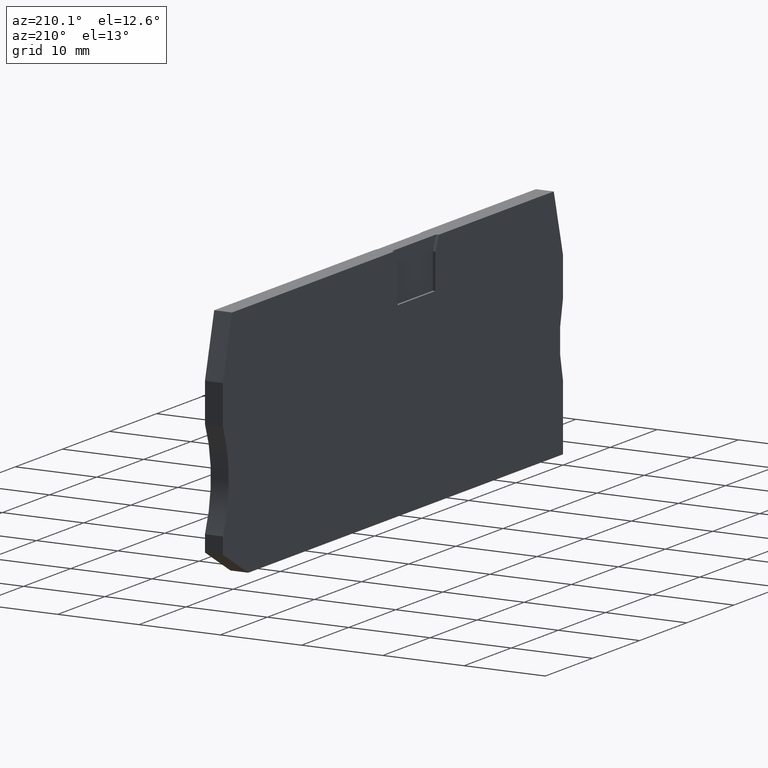
[diagram: clean part render]
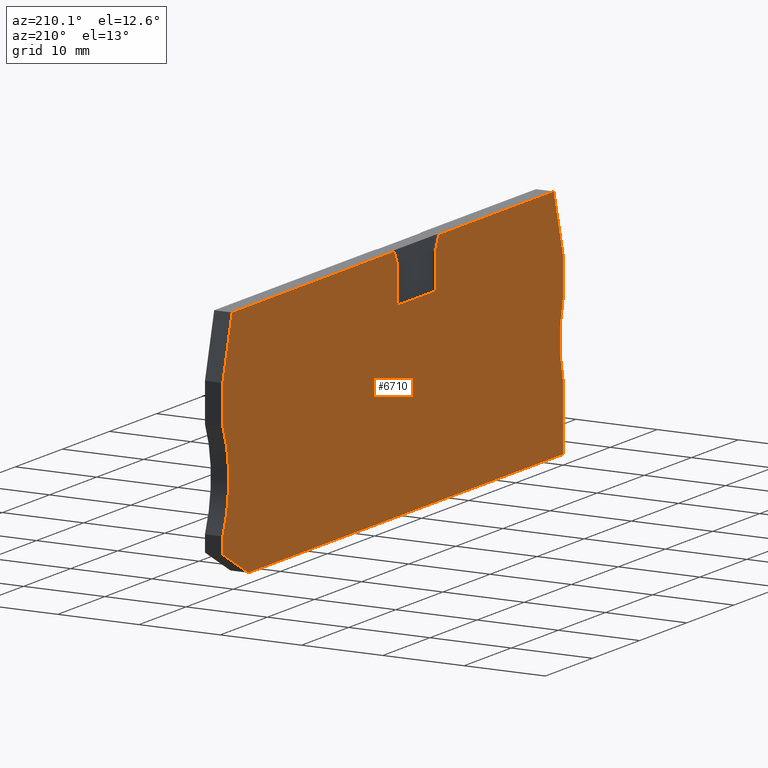
[diagram: same view with one face highlighted and labeled with its STEP entity id]
A machine part, auxiliary view. The second image highlights one B-rep face of the part: STEP entity #6710.
In plain terms, the highlighted planar face has unit normal (-1, -0, 0).
Its self-contained STEP definition (entity closure, byte-faithful):
#60=CARTESIAN_POINT('',(-7.06783277832367,-12.1300507694265,53.17));
#70=DIRECTION('',(-8.65973959207633E-15,1.,0.));
#80=VECTOR('',#70,1.);
#90=LINE('',#60,#80);
#100=CARTESIAN_POINT('',(-7.06783277832365,-15.1500000000019,53.17));
#110=VERTEX_POINT('',#100);
#120=CARTESIAN_POINT('',(-7.06783277832368,-10.8500000000052,53.17));
#130=VERTEX_POINT('',#120);
#140=EDGE_CURVE('',#110,#130,#90,.T.);
#2020=CARTESIAN_POINT('',(0.932167221676107,-12.1300507694265,53.17));
#2030=DIRECTION('',(-1.05471187339379E-15,-1.,0.));
#2040=VECTOR('',#2030,1.);
#2050=LINE('',#2020,#2040);
#2060=CARTESIAN_POINT('',(0.932167221676108,-10.8499999999525,53.17));
#2070=VERTEX_POINT('',#2060);
#2080=CARTESIAN_POINT('',(0.932167221676103,-15.1500000000019,53.17));
#2090=VERTEX_POINT('',#2080);
#2100=EDGE_CURVE('',#2070,#2090,#2050,.T.);
#2490=CARTESIAN_POINT('',(0.391157740167616,-12.1300507694265,53.17));
#2500=DIRECTION('',(-0.389303997098189,-0.921109330016461,0.));
#2510=VECTOR('',#2500,1.);
#2520=LINE('',#2490,#2510);
#2530=CARTESIAN_POINT('',(1.65066694096119,-9.15000000000164,53.17));
#2540=VERTEX_POINT('',#2530);
#2550=EDGE_CURVE('',#2540,#2070,#2520,.T.);
#2910=CARTESIAN_POINT('',(-34.1678327783247,-38.2000000000015,53.17));
#2920=VERTEX_POINT('',#2910);
#2950=CARTESIAN_POINT('',(-34.1678327783247,-12.1300507694265,53.17));
#2960=DIRECTION('',(0.,1.,0.));
#2970=VECTOR('',#2960,1.);
#2980=LINE('',#2950,#2970);
#2990=CARTESIAN_POINT('',(-34.1678327783247,-30.2000000000027,53.17));
#3000=VERTEX_POINT('',#2990);
#3010=EDGE_CURVE('',#2920,#3000,#2980,.T.);
#3260=CARTESIAN_POINT('',(-48.4769207995789,-25.7000000000027,53.17));
#3270=DIRECTION('',(0.,0.,1.));
#3280=DIRECTION('',(1.,0.,0.));
#3290=AXIS2_PLACEMENT_3D('',#3260,#3270,#3280);
#3300=CIRCLE('',#3290,15.);
#3310=CARTESIAN_POINT('',(-34.1678327783247,-21.2000000000028,53.17));
#3320=VERTEX_POINT('',#3310);
#3330=EDGE_CURVE('',#3000,#3320,#3300,.T.);
#3610=CARTESIAN_POINT('',(38.0321672216756,-21.2000000000027,53.17));
#3620=VERTEX_POINT('',#3610);
#3650=CARTESIAN_POINT('',(51.7798943065431,-27.2000000000027,53.17));
#3660=DIRECTION('',(0.,0.,1.));
#3670=DIRECTION('',(1.,0.,0.));
#3680=AXIS2_PLACEMENT_3D('',#3650,#3660,#3670);
#3690=CIRCLE('',#3680,15.);
#3700=CARTESIAN_POINT('',(38.0321672216756,-33.2000000000027,53.17));
#3710=VERTEX_POINT('',#3700);
#3720=EDGE_CURVE('',#3620,#3710,#3690,.T.);
#4760=CARTESIAN_POINT('',(38.0321672216756,-35.2,53.17));
#4770=VERTEX_POINT('',#4760);
#4800=CARTESIAN_POINT('',(11.4461541156283,-49.9500920346874,53.17));
#4810=DIRECTION('',(-0.874435210897321,-0.485142311021165,0.));
#4820=VECTOR('',#4810,1.);
#4830=LINE('',#4800,#4820);
#4840=CARTESIAN_POINT('',(32.6248762616859,-38.2000000000015,53.17));
#4850=VERTEX_POINT('',#4840);
#4860=EDGE_CURVE('',#4770,#4850,#4830,.T.);
#5120=CARTESIAN_POINT('',(11.4461541156283,-38.2000000000015,53.17));
#5130=DIRECTION('',(-1.,0.,0.));
#5140=VECTOR('',#5130,1.);
#5150=LINE('',#5120,#5140);
#5160=EDGE_CURVE('',#4850,#2920,#5150,.T.);
#5760=CARTESIAN_POINT('',(36.0719729923292,-9.15000000000164,53.17));
#5770=VERTEX_POINT('',#5760);
#5800=CARTESIAN_POINT('',(36.8704751894023,-12.1300507694265,53.17));
#5810=DIRECTION('',(0.258819045103111,-0.96592582628891,0.));
#5820=VECTOR('',#5810,1.);
#5830=LINE('',#5800,#5820);
#5840=CARTESIAN_POINT('',(38.0321672216756,-16.4655444566078,53.17));
#5850=VERTEX_POINT('',#5840);
#5860=EDGE_CURVE('',#5770,#5850,#5830,.T.);
#6050=CARTESIAN_POINT('',(-4.68088356410453,-22.3521492060807,53.17));
#6060=DIRECTION('',(0.,0.,-1.));
#6070=DIRECTION('',(-1.,0.,0.));
#6080=AXIS2_PLACEMENT_3D('',#6050,#6060,#6070);
#6090=PLANE('',#6080);
#6100=ORIENTED_EDGE('',*,*,#2550,.F.);
#6110=ORIENTED_EDGE('',*,*,#2100,.F.);
#6120=CARTESIAN_POINT('',(11.4461541156283,-15.1500000000019,53.17));
#6130=DIRECTION('',(-1.,5.55111512312593E-16,0.));
#6140=VECTOR('',#6130,1.);
#6150=LINE('',#6120,#6140);
#6160=EDGE_CURVE('',#2090,#110,#6150,.T.);
#6170=ORIENTED_EDGE('',*,*,#6160,.F.);
#6180=ORIENTED_EDGE('',*,*,#140,.F.);
#6190=CARTESIAN_POINT('',(-6.52682329685711,-12.1300507694265,53.17));
#6200=DIRECTION('',(-0.389303997086196,0.92110933002153,0.));
#6210=VECTOR('',#6200,1.);
#6220=LINE('',#6190,#6210);
#6230=CARTESIAN_POINT('',(-7.78633249760507,-9.15000000000164,53.17));
#6240=VERTEX_POINT('',#6230);
#6250=EDGE_CURVE('',#130,#6240,#6220,.T.);
#6260=ORIENTED_EDGE('',*,*,#6250,.F.);
#6270=CARTESIAN_POINT('',(11.4461541156283,-9.15000000000164,53.17));
#6280=DIRECTION('',(1.,0.,0.));
#6290=VECTOR('',#6280,1.);
#6300=LINE('',#6270,#6290);
#6310=CARTESIAN_POINT('',(-32.2076385489778,-9.15000000000164,53.17));
#6320=VERTEX_POINT('',#6310);
#6330=EDGE_CURVE('',#6320,#6240,#6300,.T.);
#6340=ORIENTED_EDGE('',*,*,#6330,.T.);
#6350=CARTESIAN_POINT('',(-33.0061407460509,-12.1300507694265,53.17));
#6360=DIRECTION('',(0.258819045103118,0.965925826288908,0.));
#6370=VECTOR('',#6360,1.);
#6380=LINE('',#6350,#6370);
#6390=CARTESIAN_POINT('',(-34.1678327783247,-16.4655444566093,53.17));
#6400=VERTEX_POINT('',#6390);
#6410=EDGE_CURVE('',#6400,#6320,#6380,.T.);
#6420=ORIENTED_EDGE('',*,*,#6410,.T.);
#6430=CARTESIAN_POINT('',(-34.1678327783247,-12.1300507694265,53.17));
#6440=DIRECTION('',(0.,1.,0.));
#6450=VECTOR('',#6440,1.);
#6460=LINE('',#6430,#6450);
#6470=EDGE_CURVE('',#3320,#6400,#6460,.T.);
#6480=ORIENTED_EDGE('',*,*,#6470,.T.);
#6490=ORIENTED_EDGE('',*,*,#3330,.T.);
#6500=ORIENTED_EDGE('',*,*,#3010,.T.);
#6510=ORIENTED_EDGE('',*,*,#5160,.T.);
#6520=ORIENTED_EDGE('',*,*,#4860,.T.);
#6530=CARTESIAN_POINT('',(38.0321672216756,-12.1300507694265,53.17));
#6540=DIRECTION('',(0.,-1.,0.));
#6550=VECTOR('',#6540,1.);
#6560=LINE('',#6530,#6550);
#6570=EDGE_CURVE('',#3710,#4770,#6560,.T.);
#6580=ORIENTED_EDGE('',*,*,#6570,.T.);
#6590=ORIENTED_EDGE('',*,*,#3720,.T.);
#6600=CARTESIAN_POINT('',(38.0321672216756,-12.1300507694265,53.17));
#6610=DIRECTION('',(0.,-1.,0.));
#6620=VECTOR('',#6610,1.);
#6630=LINE('',#6600,#6620);
#6640=EDGE_CURVE('',#5850,#3620,#6630,.T.);
#6650=ORIENTED_EDGE('',*,*,#6640,.T.);
#6660=ORIENTED_EDGE('',*,*,#5860,.T.);
#6670=EDGE_CURVE('',#2540,#5770,#6300,.T.);
#6680=ORIENTED_EDGE('',*,*,#6670,.T.);
#6690=EDGE_LOOP('',(#6680,#6660,#6650,#6590,#6580,#6520,#6510,#6500,
#6490,#6480,#6420,#6340,#6260,#6180,#6170,#6110,#6100));
#6700=FACE_OUTER_BOUND('',#6690,.T.);
#6710=ADVANCED_FACE('',(#6700),#6090,.T.);